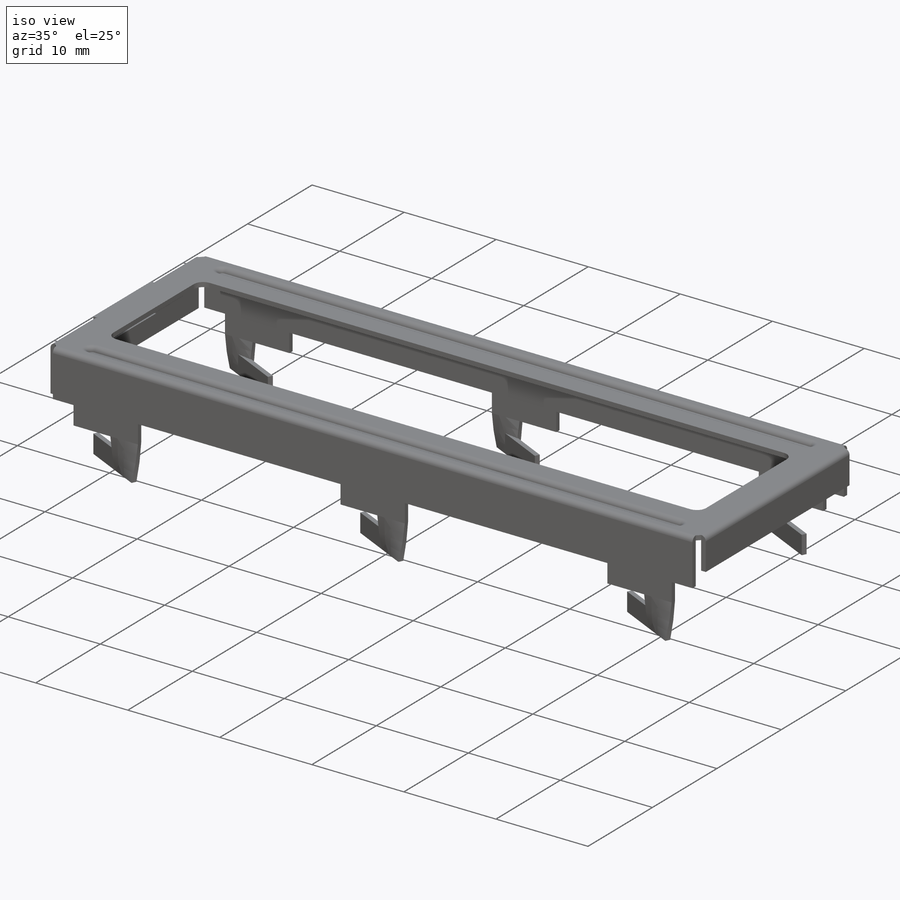
[diagram: iso view]
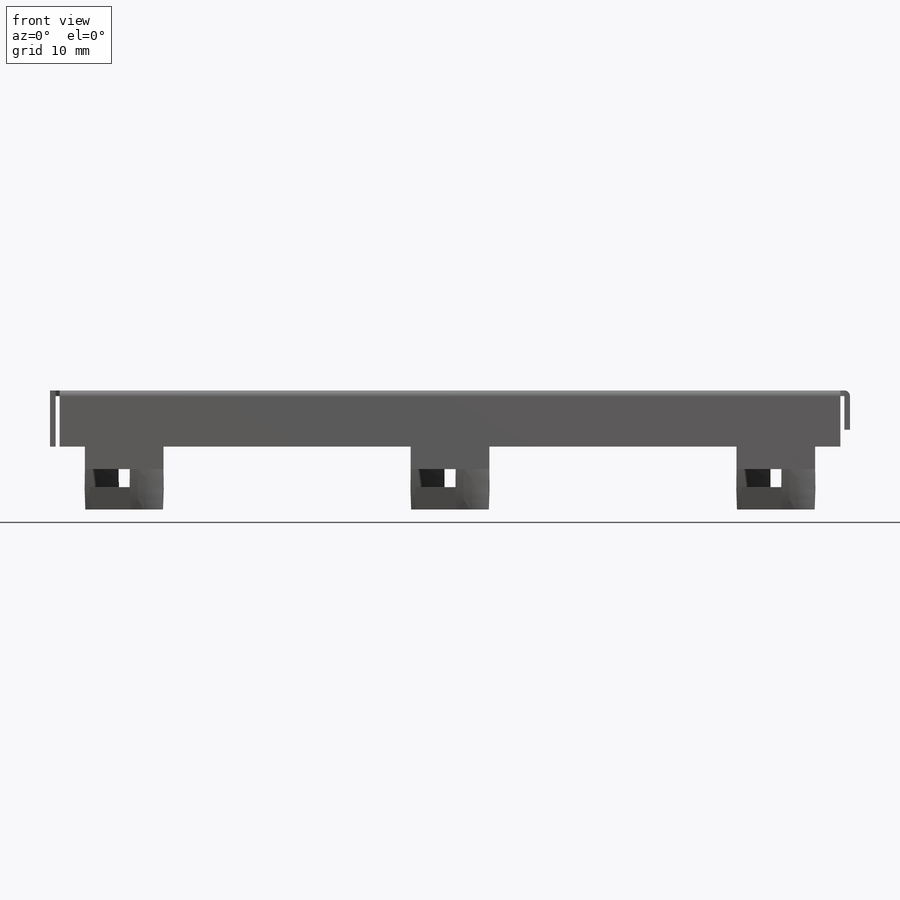
[diagram: front view]
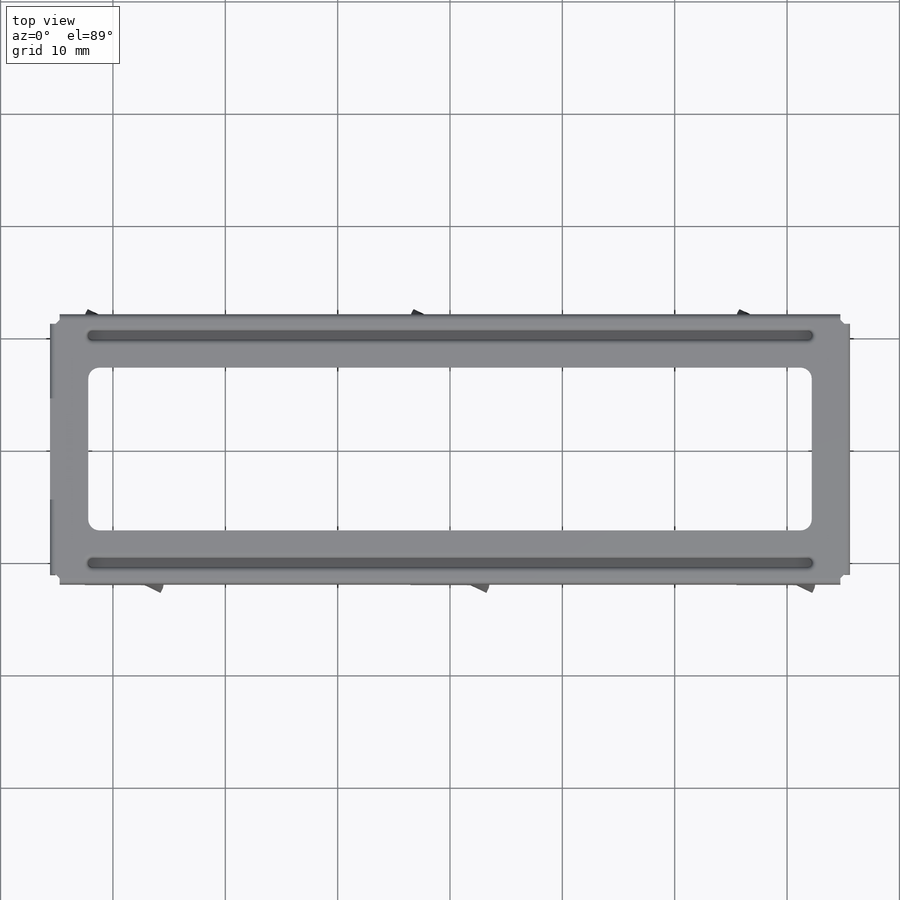
[diagram: top view]
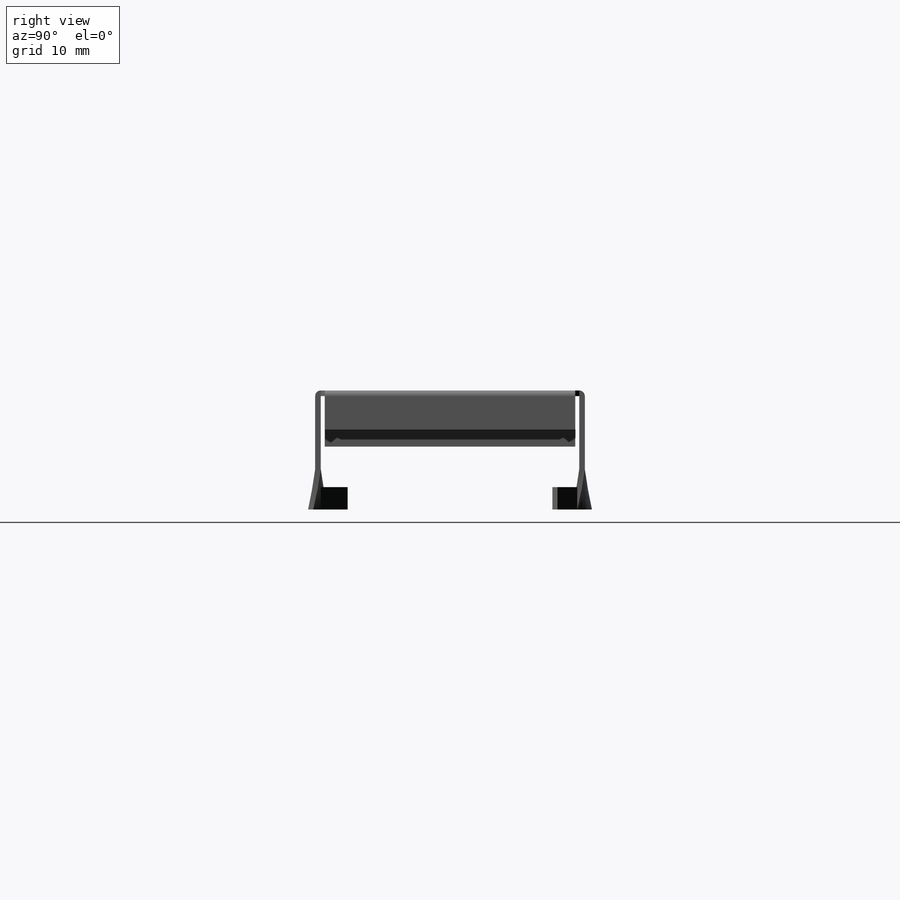
[diagram: right view]
SOLIDWORKS PART (.sldprt)
format: sldprt  version: not decoded by parser v0  size: 553,472 bytes
history: native  units: mm
features: sketch x13, extrude x7, plane x3, cut_extrude x2, fillet x2, material x1, mirror x1, pattern_linear x1, pattern_circular x1 (+11 scaffold rows collapsed)
feature tree (42):
  scaffold x11  (default folders/planes/origin — collapsed)
  material  "Material <not specified>"
  sketch  "Sketch1"  dims[D5=1.0mm D1=23.0mm D2=70.2mm D3=14.5mm D4=64.4mm]
  extrude  "Boss-Extrude1"  Depth=0.5mm
  sketch  "Sketch2"  dims[D1=0.5mm]
  extrude  "Boss-Extrude2"  Depth=5mm
  extrude  "Boss-Extrude3"  [1 undecoded]
  sketch  "Sketch2<3>"  dims[D1=3.5mm]
  sketch  "Sketch3"  dims[c1.D2=0.75mm c1.D3=0.375mm c1.D1=2.5mm c2.D2=0.75mm c2.D3=63.65mm]
  cut_extrude  "Cut-Extrude1"  Depth=0.5mm
  sketch  "Sketch4"  dims[D1=0.5mm]
  extrude  "Boss-Extrude4"  Depth=0.5mm
  fillet  "Fillet1"  Radius=0.5mm
  sketch  "Sketch9"  dims[D1=2.5mm D2=9.0mm]
  cut_extrude  "Cut-Extrude4"  [1 undecoded]
  fillet  "Fillet2"  Radius=0.5mm
  mirror  "Mirror1"
  sketch  "Sketch10"  dims[D1=0.0mm]
  extrude  "Boss-Extrude6"  Depth=0.5mm
  sketch  "Sketch11"  dims[D1=2.0mm D2=~3.690833mm D3=7.0mm]
  extrude  "Boss-Extrude7"  Depth=2mm
  plane  "Plane1"  Offset=1.6mm
  sketch  "Sketch14"  dims[D2=3.0mm D1=0.0mm]
  sketch  "Sketch13"  dims[c1.D2=3.0mm c1.D1=0.5mm c1.D3=1.5mm c1.D4=3.0mm c2.D4=9.5deg c3.D4=~0.495143mm c4.D4=9.5deg c4.D5=3.0mm c4.D6=0.5mm c4.D1=0.0mm c5.D5=0.0mm]
  plane  "Plane2"  Offset=3.6mm
  sketch  "Sketch15"  dims[c1.D1=0.5mm c1.D2=7.0mm c2.D1=0.5mm c2.D2=7.0mm c2.D3=7.0mm c3.D3=26.0deg c3.D4=3.0mm c3.D1=0.0mm]
  sketch  "3DSketch2"
  plane  "Plane4"
  sketch  "Sketch17"  dims[D1=2.0mm D2=0.5mm]
  extrude  "Boss-Extrude9"  Depth=5.5mm
  pattern_linear  "LPattern1"  Count1=2 Count2=2 Spacing1=29mm Spacing2=29mm
  pattern_circular  "CirPattern1"  Count=2 Angle=180deg
decode coverage: 23 of 27 modeling features carry decoded parameters
note: ~ marks probable driven/reference dimensions
note: 2 parameter values undecoded
note: suppression state not decoded; provenance and decode notes live in map.json
